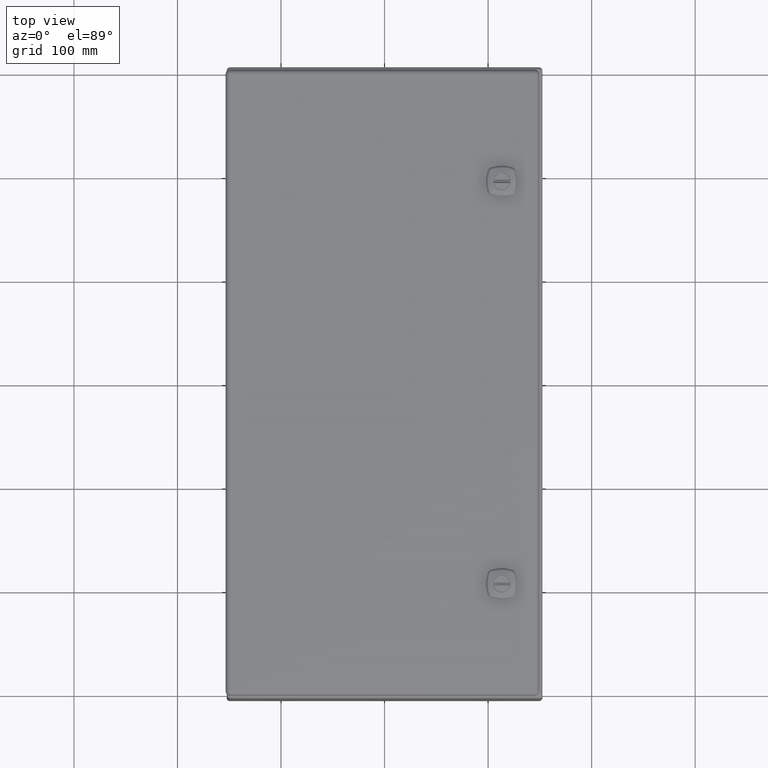
[diagram: clean part render]
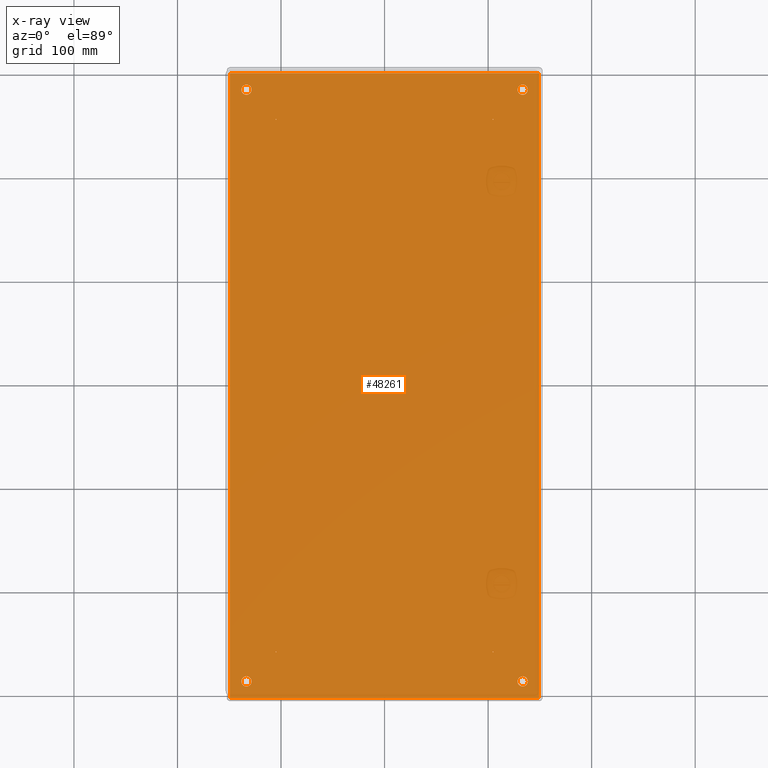
[diagram: x-ray — body ghosted, one internal face saturated and labeled with its STEP entity id]
A machine part, top view, then the same camera in x-ray: the body is ghosted and one INTERNAL B-rep face — a face not visible from any outside direction — is saturated and labeled: STEP entity #48261.
In plain terms, the highlighted planar face has unit normal (0, 0, 1).
Its self-contained STEP definition (entity closure, byte-faithful):
#3025=FACE_BOUND('',#15239,.T.);
#3026=FACE_BOUND('',#15240,.T.);
#3027=FACE_BOUND('',#15241,.T.);
#3028=FACE_BOUND('',#15242,.T.);
#3029=FACE_BOUND('',#15243,.T.);
#3030=FACE_BOUND('',#15244,.T.);
#3031=FACE_BOUND('',#15245,.T.);
#3032=FACE_BOUND('',#15246,.T.);
#4050=LINE('',#68795,#7875);
#4051=LINE('',#68797,#7876);
#4052=LINE('',#68799,#7877);
#4053=LINE('',#68800,#7878);
#7875=VECTOR('',#56305,0.393700787401575);
#7876=VECTOR('',#56306,0.393700787401575);
#7877=VECTOR('',#56307,0.393700787401575);
#7878=VECTOR('',#56308,0.393700787401575);
#12329=FACE_OUTER_BOUND('',#15238,.T.);
#15238=EDGE_LOOP('',(#32236,#32237,#32238,#32239));
#15239=EDGE_LOOP('',(#32240));
#15240=EDGE_LOOP('',(#32241));
#15241=EDGE_LOOP('',(#32242));
#15242=EDGE_LOOP('',(#32243));
#15243=EDGE_LOOP('',(#32244));
#15244=EDGE_LOOP('',(#32245));
#15245=EDGE_LOOP('',(#32246));
#15246=EDGE_LOOP('',(#32247));
#18339=CIRCLE('',#51921,0.195);
#18341=CIRCLE('',#51924,0.195);
#18343=CIRCLE('',#51927,0.195);
#18345=CIRCLE('',#51930,0.195);
#18372=CIRCLE('',#52004,0.015);
#18373=CIRCLE('',#52005,0.015);
#18374=CIRCLE('',#52006,0.015);
#18375=CIRCLE('',#52007,0.015);
#20024=VERTEX_POINT('',#68280);
#20026=VERTEX_POINT('',#68286);
#20028=VERTEX_POINT('',#68292);
#20030=VERTEX_POINT('',#68298);
#20080=VERTEX_POINT('',#68787);
#20083=VERTEX_POINT('',#68794);
#20084=VERTEX_POINT('',#68796);
#20085=VERTEX_POINT('',#68798);
#20086=VERTEX_POINT('',#68801);
#20087=VERTEX_POINT('',#68803);
#20088=VERTEX_POINT('',#68805);
#20089=VERTEX_POINT('',#68807);
#24689=EDGE_CURVE('',#20024,#20024,#18339,.T.);
#24692=EDGE_CURVE('',#20026,#20026,#18341,.T.);
#24695=EDGE_CURVE('',#20028,#20028,#18343,.T.);
#24698=EDGE_CURVE('',#20030,#20030,#18345,.T.);
#24782=EDGE_CURVE('',#20083,#20080,#4050,.T.);
#24783=EDGE_CURVE('',#20080,#20084,#4051,.T.);
#24784=EDGE_CURVE('',#20084,#20085,#4052,.T.);
#24785=EDGE_CURVE('',#20085,#20083,#4053,.T.);
#24786=EDGE_CURVE('',#20086,#20086,#18372,.T.);
#24787=EDGE_CURVE('',#20087,#20087,#18373,.T.);
#24788=EDGE_CURVE('',#20088,#20088,#18374,.T.);
#24789=EDGE_CURVE('',#20089,#20089,#18375,.T.);
#32236=ORIENTED_EDGE('',*,*,#24782,.T.);
#32237=ORIENTED_EDGE('',*,*,#24783,.T.);
#32238=ORIENTED_EDGE('',*,*,#24784,.T.);
#32239=ORIENTED_EDGE('',*,*,#24785,.T.);
#32240=ORIENTED_EDGE('',*,*,#24689,.T.);
#32241=ORIENTED_EDGE('',*,*,#24692,.T.);
#32242=ORIENTED_EDGE('',*,*,#24695,.T.);
#32243=ORIENTED_EDGE('',*,*,#24698,.T.);
#32244=ORIENTED_EDGE('',*,*,#24786,.T.);
#32245=ORIENTED_EDGE('',*,*,#24787,.T.);
#32246=ORIENTED_EDGE('',*,*,#24788,.T.);
#32247=ORIENTED_EDGE('',*,*,#24789,.T.);
#46887=PLANE('',#52003);
#48261=ADVANCED_FACE('',(#12329,#3025,#3026,#3027,#3028,#3029,#3030,#3031,
#3032),#46887,.T.);
#51921=AXIS2_PLACEMENT_3D('',#68281,#56107,#56108);
#51924=AXIS2_PLACEMENT_3D('',#68287,#56114,#56115);
#51927=AXIS2_PLACEMENT_3D('',#68293,#56121,#56122);
#51930=AXIS2_PLACEMENT_3D('',#68299,#56128,#56129);
#52003=AXIS2_PLACEMENT_3D('',#68793,#56303,#56304);
#52004=AXIS2_PLACEMENT_3D('',#68802,#56309,#56310);
#52005=AXIS2_PLACEMENT_3D('',#68804,#56311,#56312);
#52006=AXIS2_PLACEMENT_3D('',#68806,#56313,#56314);
#52007=AXIS2_PLACEMENT_3D('',#68808,#56315,#56316);
#56107=DIRECTION('center_axis',(0.,0.,-1.));
#56108=DIRECTION('ref_axis',(1.,0.,0.));
#56114=DIRECTION('center_axis',(0.,0.,-1.));
#56115=DIRECTION('ref_axis',(1.,0.,0.));
#56121=DIRECTION('center_axis',(0.,0.,-1.));
#56122=DIRECTION('ref_axis',(1.,0.,0.));
#56128=DIRECTION('center_axis',(0.,0.,-1.));
#56129=DIRECTION('ref_axis',(1.,0.,0.));
#56303=DIRECTION('center_axis',(0.,0.,1.));
#56304=DIRECTION('ref_axis',(1.,0.,0.));
#56305=DIRECTION('',(0.,-1.,0.));
#56306=DIRECTION('',(1.,0.,0.));
#56307=DIRECTION('',(0.,1.,0.));
#56308=DIRECTION('',(-1.,0.,0.));
#56309=DIRECTION('center_axis',(0.,0.,-1.));
#56310=DIRECTION('ref_axis',(-1.,0.,0.));
#56311=DIRECTION('center_axis',(0.,0.,-1.));
#56312=DIRECTION('ref_axis',(-1.,0.,0.));
#56313=DIRECTION('center_axis',(0.,0.,-1.));
#56314=DIRECTION('ref_axis',(-1.,0.,0.));
#56315=DIRECTION('center_axis',(0.,0.,-1.));
#56316=DIRECTION('ref_axis',(-1.,0.,0.));
#68280=CARTESIAN_POINT('',(5.055,-11.25,0.09));
#68281=CARTESIAN_POINT('Origin',(5.25,-11.25,0.09));
#68286=CARTESIAN_POINT('',(5.055,11.25,0.09));
#68287=CARTESIAN_POINT('Origin',(5.25,11.25,0.09));
#68292=CARTESIAN_POINT('',(-5.445,11.25,0.09));
#68293=CARTESIAN_POINT('Origin',(-5.25,11.25,0.09));
#68298=CARTESIAN_POINT('',(-5.445,-11.25,0.09));
#68299=CARTESIAN_POINT('Origin',(-5.25,-11.25,0.09));
#68787=CARTESIAN_POINT('',(-5.879,-11.879,0.09));
#68793=CARTESIAN_POINT('Origin',(0.,0.,0.09));
#68794=CARTESIAN_POINT('',(-5.879,11.879,0.09));
#68795=CARTESIAN_POINT('',(-5.879,-6.,0.09));
#68796=CARTESIAN_POINT('',(5.879,-11.879,0.09));
#68797=CARTESIAN_POINT('',(2.9395,-11.879,0.09));
#68798=CARTESIAN_POINT('',(5.879,11.879,0.09));
#68799=CARTESIAN_POINT('',(5.879,6.,0.09));
#68800=CARTESIAN_POINT('',(-2.9395,11.879,0.09));
#68801=CARTESIAN_POINT('',(-4.11,-10.125,0.09));
#68802=CARTESIAN_POINT('Origin',(-4.125,-10.125,0.09));
#68803=CARTESIAN_POINT('',(-4.11,10.125,0.09));
#68804=CARTESIAN_POINT('Origin',(-4.125,10.125,0.09));
#68805=CARTESIAN_POINT('',(4.14,10.125,0.09));
#68806=CARTESIAN_POINT('Origin',(4.125,10.125,0.09));
#68807=CARTESIAN_POINT('',(4.14,-10.125,0.09));
#68808=CARTESIAN_POINT('Origin',(4.125,-10.125,0.09));